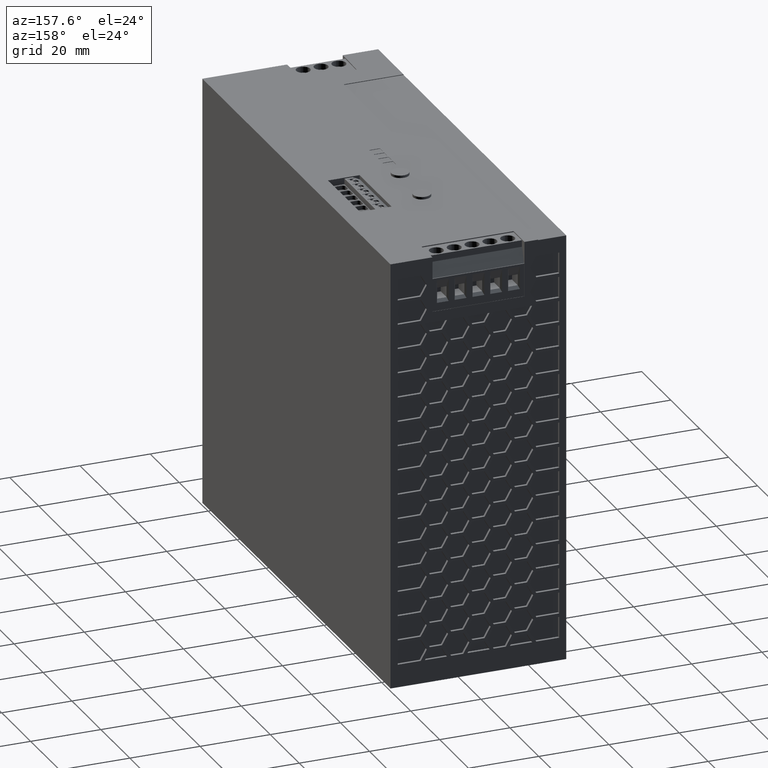
[diagram: clean part render]
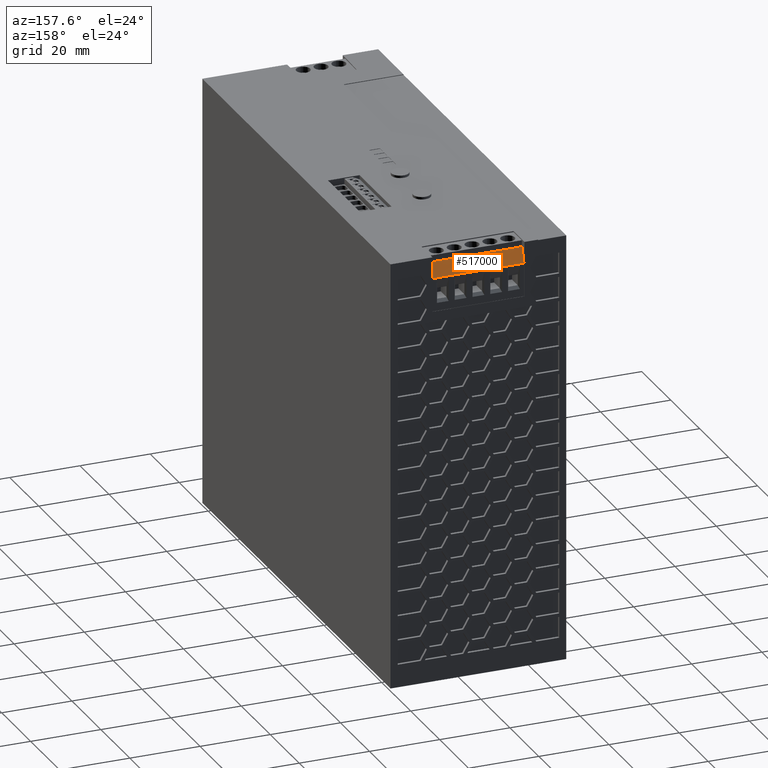
[diagram: same view with one face highlighted and labeled with its STEP entity id]
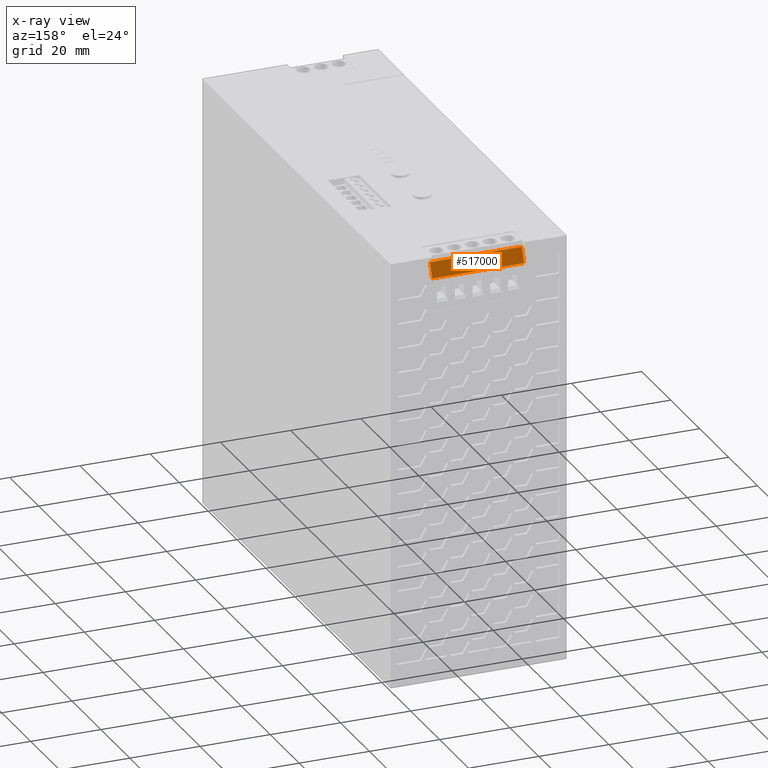
[diagram: x-ray of the same camera — body ghosted, the highlighted face saturated]
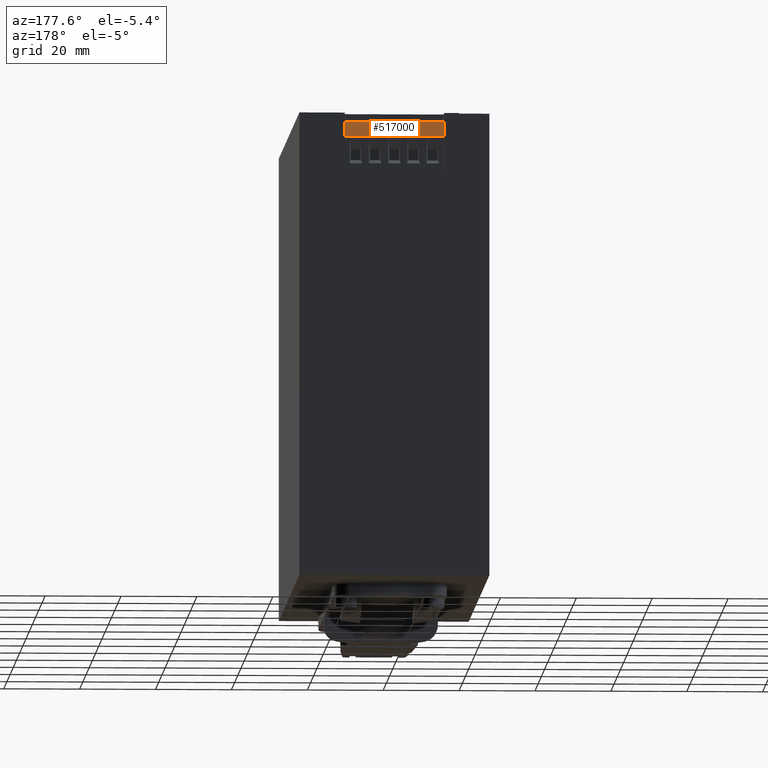
[diagram: same view with one face highlighted and labeled with its STEP entity id]
A machine part, auxiliary view. The second image highlights one B-rep face of the part: STEP entity #517000.
The next image is the same camera in x-ray: the body ghosted, the highlighted face saturated — about 0% of this face is hidden behind the body in this view.
A second angle (auxiliary view) of the same face is appended — the face is thin or edge-on in the first view.
In plain terms, the highlighted planar face has unit normal (0, 0.9397, 0.342).
Its self-contained STEP definition (entity closure, byte-faithful):
#507620=CARTESIAN_POINT('',(-2.16,115.900044444441,-0.506350036219992));
#507630=VERTEX_POINT('',#507620);
#507660=CARTESIAN_POINT('',(-2.16,0.,-42.6905163641308));
#507670=DIRECTION('',(0.,-0.939692620785897,-0.342020143325699));
#507680=VECTOR('',#507670,1.);
#507690=LINE('',#507660,#507680);
#507700=CARTESIAN_POINT('',(-2.16,120.021260573623,0.993649963780051));
#507710=VERTEX_POINT('',#507700);
#507720=EDGE_CURVE('',#507710,#507630,#507690,.T.);
#508150=CARTESIAN_POINT('',(24.04,120.021260573623,0.993649963780044));
#508160=VERTEX_POINT('',#508150);
#508190=CARTESIAN_POINT('',(24.04,0.,-42.6905163641308));
#508200=DIRECTION('',(0.,-0.939692620785897,-0.342020143325699));
#508210=VECTOR('',#508200,1.);
#508220=LINE('',#508190,#508210);
#508230=CARTESIAN_POINT('',(24.04,115.900044444441,-0.506350036219992));
#508240=VERTEX_POINT('',#508230);
#508250=EDGE_CURVE('',#508160,#508240,#508220,.T.);
#515200=CARTESIAN_POINT('',(0.,115.900044444441,-0.506350036219994));
#515210=DIRECTION('',(-1.,0.,0.));
#515220=VECTOR('',#515210,1.);
#515230=LINE('',#515200,#515220);
#515240=EDGE_CURVE('',#508240,#507630,#515230,.T.);
#516840=CARTESIAN_POINT('',(11.08,115.900044444441,-0.506350036219992));
#516850=DIRECTION('',(0.,0.342020143325699,-0.939692620785897));
#516860=DIRECTION('',(0.,0.939692620785897,0.342020143325699));
#516870=AXIS2_PLACEMENT_3D('',#516840,#516850,#516860);
#516880=PLANE('',#516870);
#516890=ORIENTED_EDGE('',*,*,#508250,.T.);
#516900=CARTESIAN_POINT('',(0.,120.021260573623,0.993649963780008));
#516910=DIRECTION('',(1.,0.,0.));
#516920=VECTOR('',#516910,1.);
#516930=LINE('',#516900,#516920);
#516940=EDGE_CURVE('',#507710,#508160,#516930,.T.);
#516950=ORIENTED_EDGE('',*,*,#516940,.T.);
#516960=ORIENTED_EDGE('',*,*,#507720,.F.);
#516970=ORIENTED_EDGE('',*,*,#515240,.T.);
#516980=EDGE_LOOP('',(#516970,#516960,#516950,#516890));
#516990=FACE_OUTER_BOUND('',#516980,.T.);
#517000=ADVANCED_FACE('',(#516990),#516880,.T.);